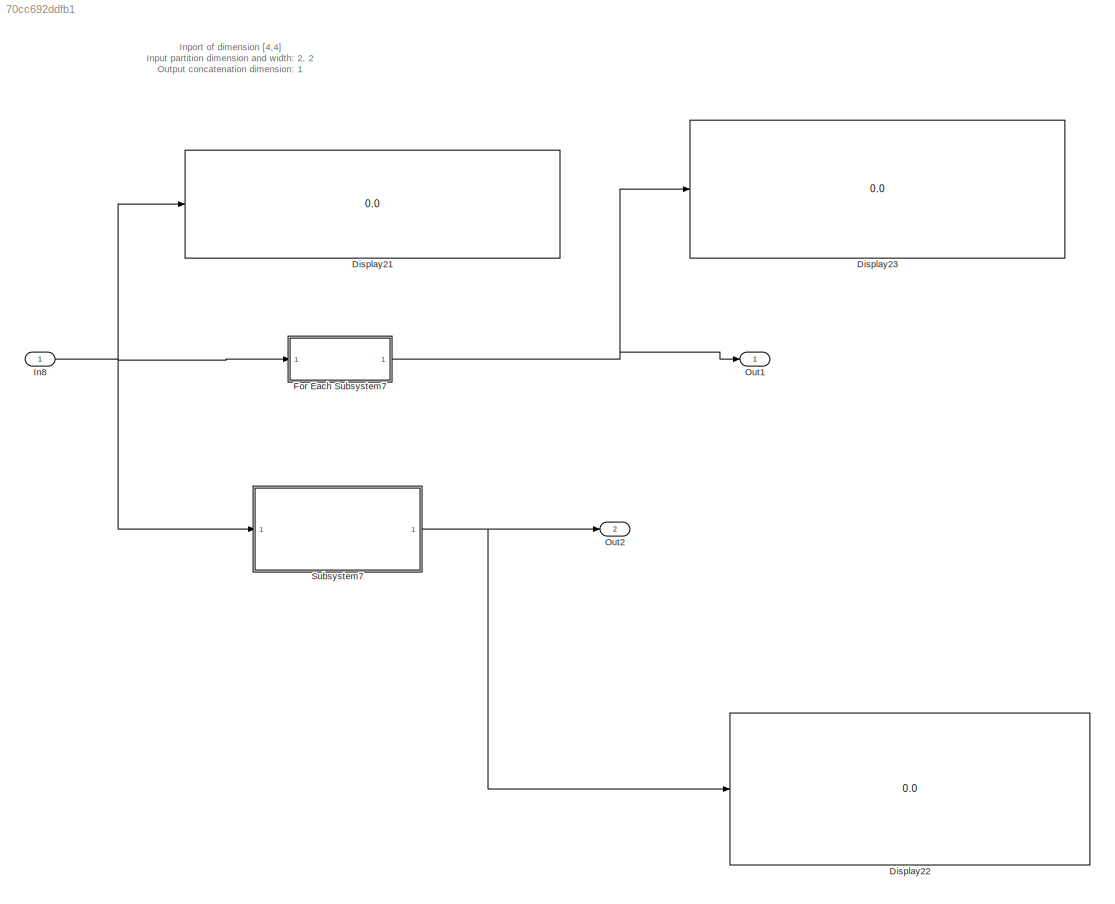
MODEL slx_70cc692ddfb1
KIND model
CONFIG AbsTol = auto
CONFIG EnableMultiTasking = on
CONFIG FixedStep = 0.200000
CONFIG MaxStep = auto
CONFIG MinStep = auto
CONFIG RelTol = 1e-3
CONFIG SampleTimeConstraint = Unconstrained
CONFIG Solver = FixedStepDiscrete
CONFIG SolverName = FixedStepDiscrete
CONFIG StartTime = 0.0
CONFIG StopTime = 10.0
BLOCK [Display] Display21
  Decimation = 1
  Ports = [1]
BLOCK [Display] Display22
  Decimation = 1
  Ports = [1]
BLOCK [Display] Display23
  Decimation = 1
  Ports = [1]
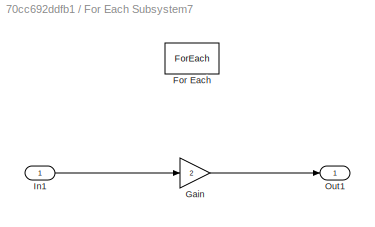
BLOCK [SubSystem] For Each Subsystem7
  Ports = [1, 1]
  RequestExecContextInheritance = off
  Variant = off
BLOCK [ForEach] For Each Subsystem7/For Each
  DisableCoverage = on
  IndexMode = One-based
  Ports = []
BLOCK [Gain] For Each Subsystem7/Gain
  Gain = 2
  OutDataTypeStr = Inherit: Inherit via internal rule
  ParamDataTypeStr = Inherit: Inherit via internal rule
  SaturateOnIntegerOverflow = off
BLOCK [Inport] For Each Subsystem7/In1
  IconDisplay = Port number
  Partition = on
  PartitionDimension = 2
  PartitionOffset = 0
  PartitionWidth = 2
BLOCK [Outport] For Each Subsystem7/Out1
  ConcatenationDimension = 1
  IconDisplay = Port number
BLOCK [Inport] In8
  IconDisplay = Port number
  PortDimensions = [ 4 4]
BLOCK [Outport] Out1
  IconDisplay = Port number
BLOCK [Outport] Out2
  IconDisplay = Port number
  Port = 2
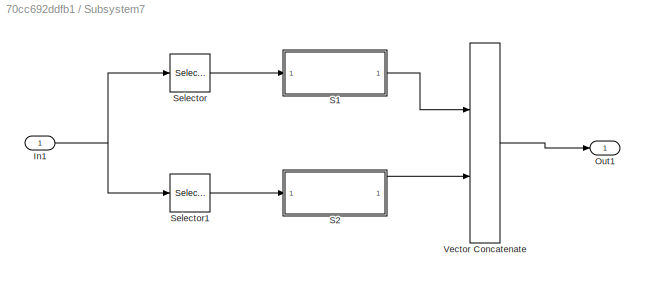
BLOCK [SubSystem] Subsystem7
  Ports = [1, 1]
  RequestExecContextInheritance = off
  Variant = off
BLOCK [Inport] Subsystem7/In1
  IconDisplay = Port number
BLOCK [Outport] Subsystem7/Out1
  IconDisplay = Port number
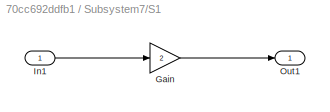
BLOCK [SubSystem] Subsystem7/S1
  Ports = [1, 1]
  RequestExecContextInheritance = off
  Variant = off
BLOCK [Gain] Subsystem7/S1/Gain
  Gain = 2
  OutDataTypeStr = Inherit: Inherit via internal rule
  ParamDataTypeStr = Inherit: Inherit via internal rule
  SaturateOnIntegerOverflow = off
BLOCK [Inport] Subsystem7/S1/In1
  IconDisplay = Port number
BLOCK [Outport] Subsystem7/S1/Out1
  IconDisplay = Port number
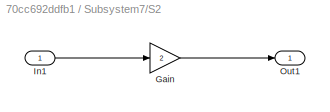
BLOCK [SubSystem] Subsystem7/S2
  Ports = [1, 1]
  RequestExecContextInheritance = off
  Variant = off
BLOCK [Gain] Subsystem7/S2/Gain
  Gain = 2
  OutDataTypeStr = Inherit: Inherit via internal rule
  ParamDataTypeStr = Inherit: Inherit via internal rule
  SaturateOnIntegerOverflow = off
BLOCK [Inport] Subsystem7/S2/In1
  IconDisplay = Port number
BLOCK [Outport] Subsystem7/S2/Out1
  IconDisplay = Port number
BLOCK [Selector] Subsystem7/Selector
  IndexOptions = Select all,Index vector (dialog)
  Indices = ,[1 2]
  InputPortWidth = 3
  NumberOfDimensions = 2
  OutputSizes = 1,1
  Ports = [1, 1]
BLOCK [Selector] Subsystem7/Selector1
  IndexOptions = Select all,Index vector (dialog)
  Indices = [3 4],[3 4]
  InputPortWidth = 3
  NumberOfDimensions = 2
  OutputSizes = 1,1
  Ports = [1, 1]
BLOCK [Concatenate] Subsystem7/Vector Concatenate
  Mode = Multidimensional array
  Ports = [2, 1]
ANNOTATION (root): Inport of dimension [4,4] Input partition dimension and width: 2, 2 Output concatenation dimension: 1
LINE For Each Subsystem7/Gain:1 -> For Each Subsystem7/Out1:1
LINE For Each Subsystem7/In1:1 -> For Each Subsystem7/Gain:1
NET For Each Subsystem7:1 -> Display23:1, Out1:1
NET In8:1 -> Display21:1, For Each Subsystem7:1, Subsystem7:1
NET Subsystem7/In1:1 -> Subsystem7/Selector1:1, Subsystem7/Selector:1
LINE Subsystem7/S1/Gain:1 -> Subsystem7/S1/Out1:1
LINE Subsystem7/S1/In1:1 -> Subsystem7/S1/Gain:1
LINE Subsystem7/S1:1 -> Subsystem7/Vector Concatenate:1
LINE Subsystem7/S2/Gain:1 -> Subsystem7/S2/Out1:1
LINE Subsystem7/S2/In1:1 -> Subsystem7/S2/Gain:1
LINE Subsystem7/S2:1 -> Subsystem7/Vector Concatenate:2
LINE Subsystem7/Selector1:1 -> Subsystem7/S2:1
LINE Subsystem7/Selector:1 -> Subsystem7/S1:1
LINE Subsystem7/Vector Concatenate:1 -> Subsystem7/Out1:1
NET Subsystem7:1 -> Display22:1, Out2:1
note: NET lines group one-source signal fan-out (src -> all destinations, sorted); 1:1 wires keep LINE
